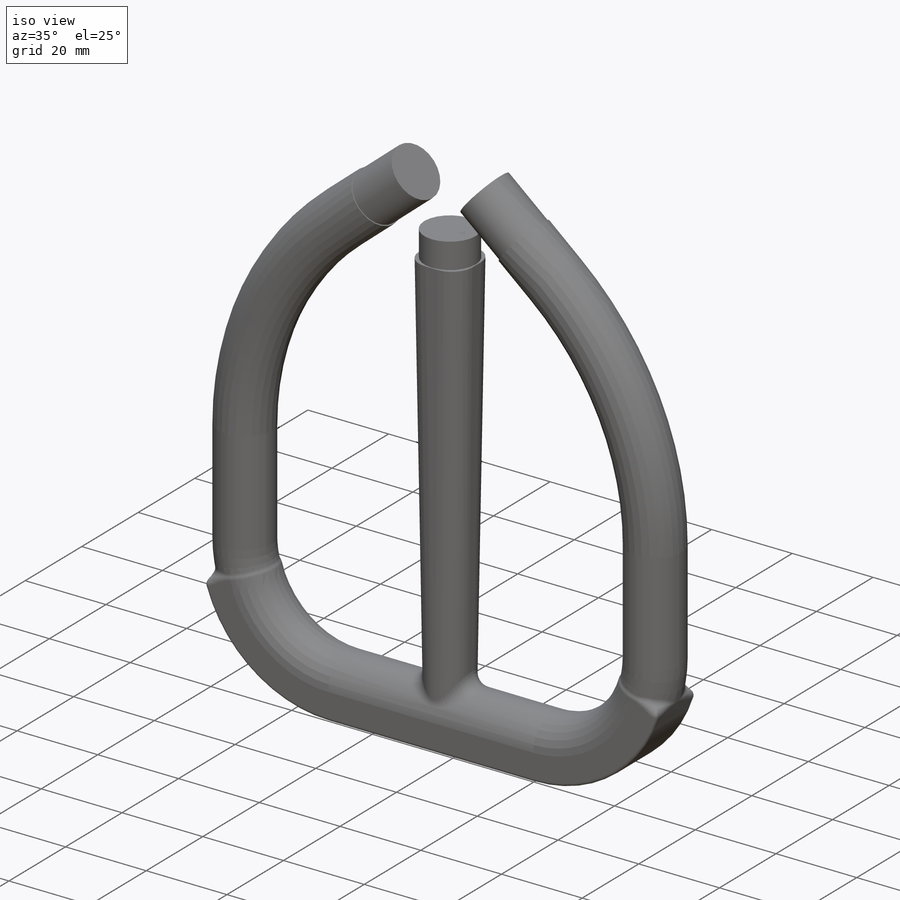
[diagram: iso view]
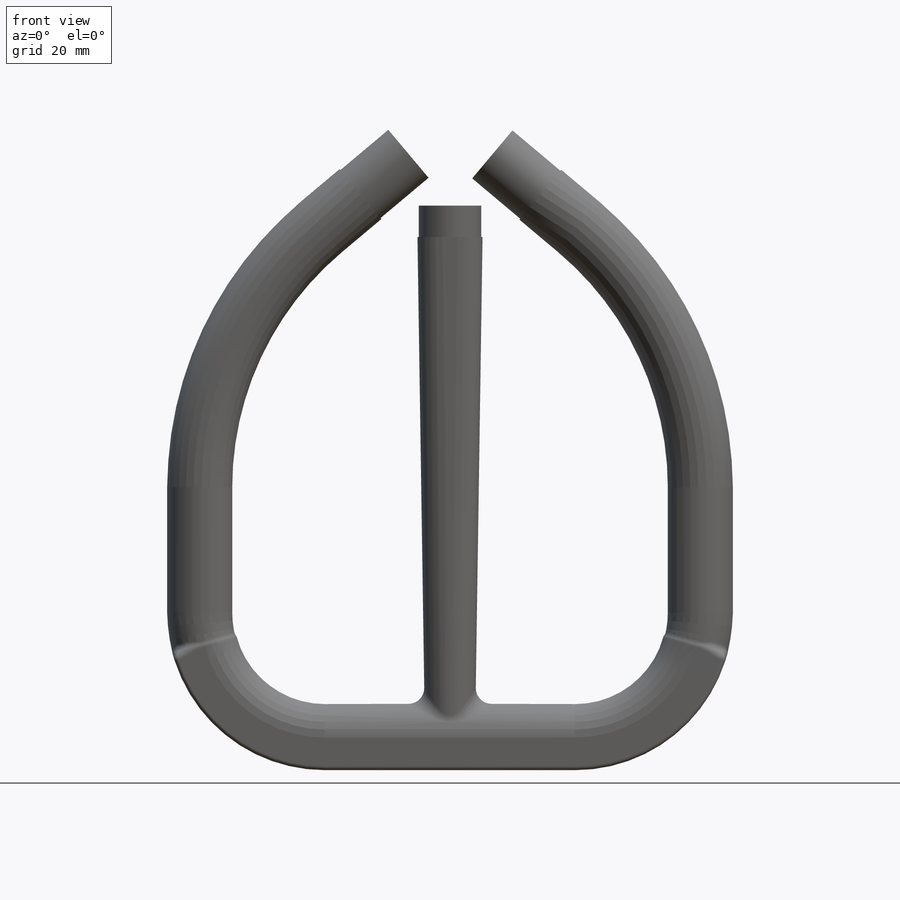
[diagram: front view]
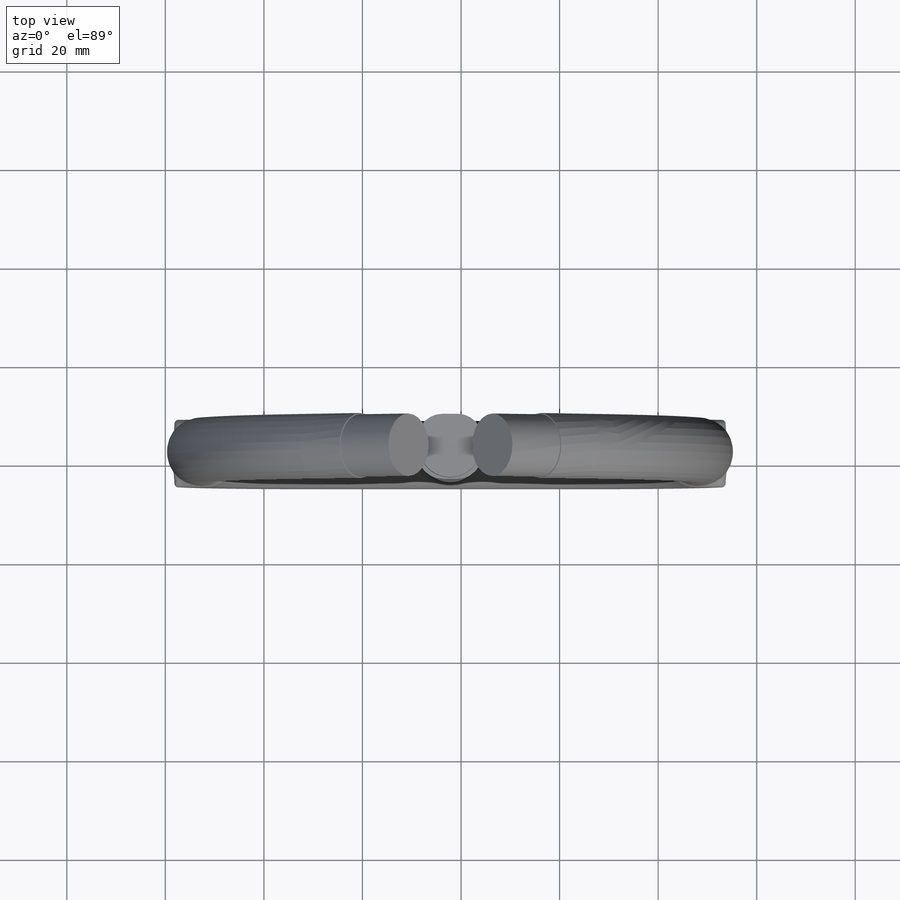
[diagram: top view]
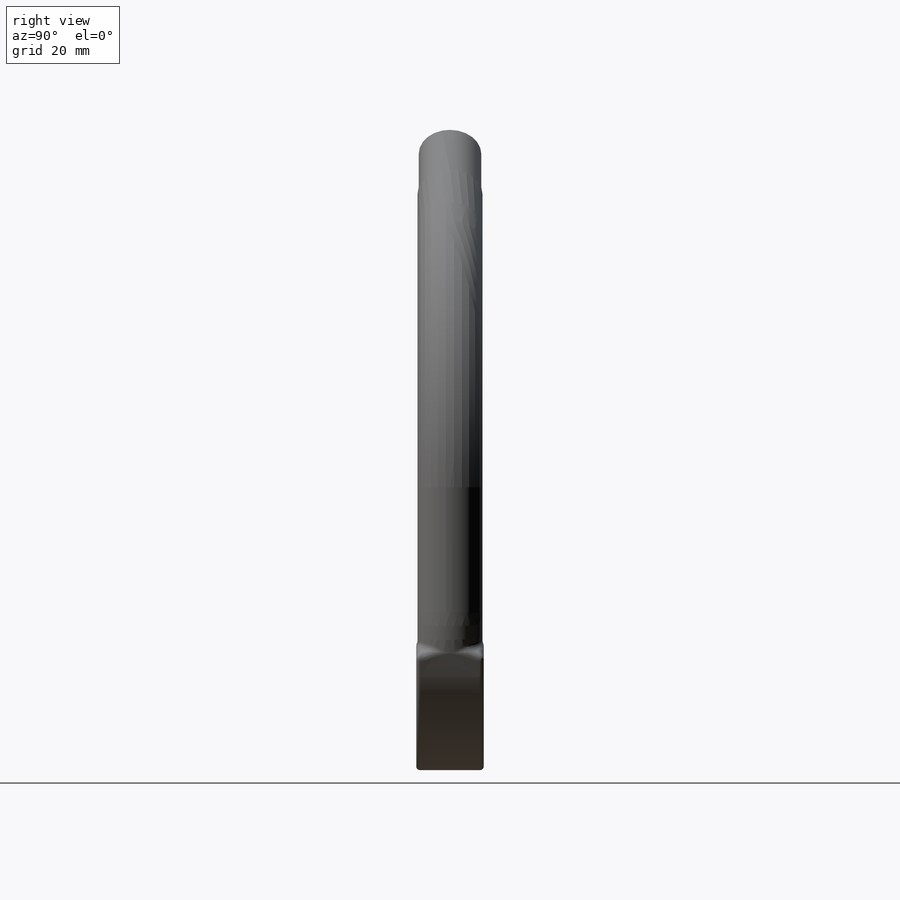
[diagram: right view]
SOLIDWORKS PART (.sldprt)
format: sldprt  version: not decoded by parser v0  size: 943,104 bytes
history: native  units: mm
features: sketch x20, plane x6, fillet x5, sweep x3, extrude x3, material x1 + 1 further entry (+21 scaffold rows collapsed; 3 parser-record rows omitted)
feature tree (63):
  scaffold x21  (default folders/planes/origin — collapsed)
  material  "Material <not specified>"
  plane  "Front Plane-Hub"
  plane  "Top Plane-Hub"
  plane  "Right Plane-Hub"
  sketch  "Sketch1-Hub"  dims[c1.D14=6.35mm c1.D4=~17.169401mm c2.D4=50.0deg c2.D5=13.5255mm c3.D5=90.0deg c3.D15=~45.15104mm c3.D16=~68.775249mm c4.D16=15.0deg c4.D17=~50.02846mm c4.D12=~21.765148mm c5.D12=50.0deg c5.D1=49.276mm c5.D2=11.1125mm c5.D3=11.1125mm c5.D6=71.6407mm c5.D7=68.199mm c5.D8=5.3594mm c5.D9=5.3594mm c5.D10=8.0645mm c5.D11=8.0645mm c6.D12=4.7244mm c6.D13=11.1125mm c6.D17=3.175mm c6.D18=3.175mm c6.D19=4.8895mm c6.D20=82.9945mm]
  sketch  "Sketch12-Hub"
  sketch  "Sketch14-Hub"  dims[D2=12.7mm D1=9.8425mm]
  sketch  "Sketch15-Hub"  dims[D2=12.7mm D1=9.8425mm]
  sketch  "Sketch16-Hub"  dims[D1=12.7mm]
  sketch  "Sketch19-Hub"  dims[c1.D7=3.0353mm c1.D1=16.51mm c1.D2=16.51mm c1.D3=9.8425mm c1.D4=9.8425mm c2.D1=2.54mm c2.D2=2.54mm c2.D5=2.54mm c2.D6=2.54mm]
  "Hub"
  parser-record x3  (decoder bookkeeping rows leaked as tree rows — omitted from the tree; the rows remain in map.json)
  sketch  "Sketch19"
  plane  "Center Plane"
  sketch  "Sketch20"  dims[D1=50.8mm D2=50.8mm D3=101.6mm D4=25.4mm D5=50.8mm]
  sketch  "Sketch21"  dims[D1=6.35mm]
  sweep  "Sweep2"
  plane  "Vertical Center Plane"
  sketch  "Sketch22"  dims[c1.D1=6.731mm c1.D2=7.112mm c2.D1=0.254mm]
  sketch  "Sketch23"  dims[c1.D1=25.4mm c2.D1=15.0deg]
  sketch  "Sketch20<7>"
  sweep  "Sweep6"
  sketch  "Sketch25"
  sweep  "Sweep11"
  sketch  "Sketch22<8>"
  sketch  "Sketch26"  dims[D1=13.208mm D2=13.208mm]
  sketch  "Sketch27"
  plane  "Plane2"
  sketch  "Sketch28"  dims[D1=10.16mm D2=11.43mm]
  sketch  "Sketch30"  dims[D1=12.7mm]
  extrude  "Extrude1"  Depth=12.7mm
  sketch  "Sketch31"  dims[D1=~7.18185mm]
  extrude  "Extrude2"  Depth=12.7mm
  fillet  "Fillet1"  Radius=5.08mm
  fillet  "Fillet6"  Radius=3.175mm
  fillet  "Fillet8"  Radius=0.79375mm
  fillet  "Fillet10"  Radius=1.5875mm
  fillet  "Fillet11"  Radius=1.5875mm
  sketch  "Sketch33"  dims[D1=12.7mm]
  extrude  "Extrude3"  Depth=6.35mm
decode coverage: 22 of 31 modeling features carry decoded parameters; 1 rows unclassified (native names shown)
note: ~ marks probable driven/reference dimensions
note: suppression state not decoded; provenance and decode notes live in map.json
